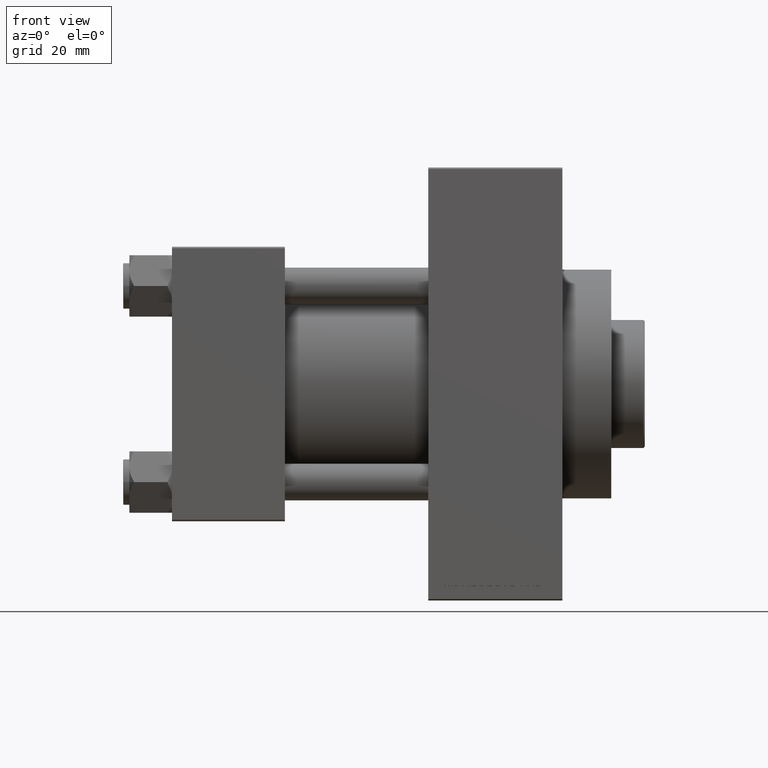
[diagram: clean part render]
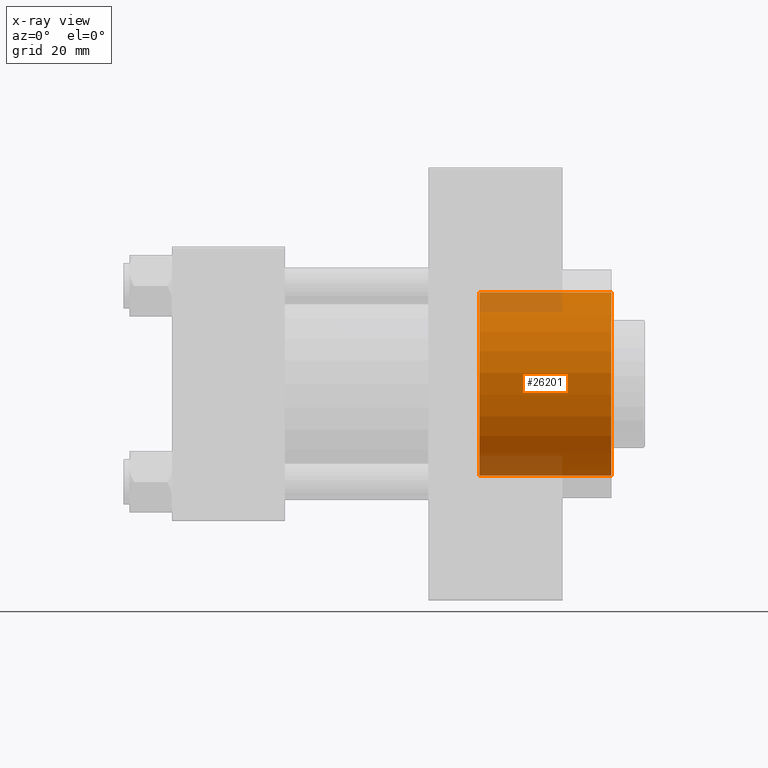
[diagram: x-ray — body ghosted, one internal face saturated and labeled with its STEP entity id]
A machine part, front view, then the same camera in x-ray: the body is ghosted and one INTERNAL B-rep face — a face not visible from any outside direction — is saturated and labeled: STEP entity #26201.
In plain terms, the highlighted cylindrical surface (partial cylindrical patch) has radius 30 mm, axis along (1, 0, 0).
Its self-contained STEP definition (entity closure, byte-faithful):
#6 = ORIENTED_EDGE ( 'NONE', *, *, #17938, .F. ) ;
#164 = DIRECTION ( 'NONE',  ( 0.000000000000000000, 0.000000000000000000, -1.000000000000000000 ) ) ;
#516 = CARTESIAN_POINT ( 'NONE',  ( 144.0000000000000284, 0.000000000000000000, -30.00000000000000000 ) ) ;
#2182 = DIRECTION ( 'NONE',  ( 1.000000000000000000, -0.000000000000000000, -0.000000000000000000 ) ) ;
#2201 = CARTESIAN_POINT ( 'NONE',  ( 100.7400000000000233, 3.673940397442059178E-15, 30.00000000000000000 ) ) ;
#4290 = CARTESIAN_POINT ( 'NONE',  ( 100.7400000000000233, 0.000000000000000000, -30.00000000000000000 ) ) ;
#4436 = CARTESIAN_POINT ( 'NONE',  ( 100.7400000000000233, 0.000000000000000000, 0.000000000000000000 ) ) ;
#4820 = VERTEX_POINT ( 'NONE', #4290 ) ;
#5921 = AXIS2_PLACEMENT_3D ( 'NONE', #39833, #21450, #43416 ) ;
#7325 = DIRECTION ( 'NONE',  ( 1.000000000000000000, -0.000000000000000000, -0.000000000000000000 ) ) ;
#7341 = ORIENTED_EDGE ( 'NONE', *, *, #15600, .T. ) ;
#12687 = ORIENTED_EDGE ( 'NONE', *, *, #24501, .T. ) ;
#13786 = DIRECTION ( 'NONE',  ( 1.000000000000000000, -0.000000000000000000, -0.000000000000000000 ) ) ;
#14351 = AXIS2_PLACEMENT_3D ( 'NONE', #40038, #7325, #164 ) ;
#15518 = VERTEX_POINT ( 'NONE', #516 ) ;
#15600 = EDGE_CURVE ( 'NONE', #32209, #30553, #34436, .T. ) ;
#16363 = DIRECTION ( 'NONE',  ( 1.000000000000000000, 0.000000000000000000, 0.000000000000000000 ) ) ;
#17125 = CIRCLE ( 'NONE', #37715, 30.00000000000000000 ) ;
#17344 = CARTESIAN_POINT ( 'NONE',  ( 100.7400000000000233, 0.000000000000000000, -30.00000000000000000 ) ) ;
#17938 = EDGE_CURVE ( 'NONE', #32209, #4820, #17125, .T. ) ;
#21450 = DIRECTION ( 'NONE',  ( 1.000000000000000000, 0.000000000000000000, 0.000000000000000000 ) ) ;
#24138 = ORIENTED_EDGE ( 'NONE', *, *, #39896, .F. ) ;
#24230 = VECTOR ( 'NONE', #13786, 1000.000000000000000 ) ;
#24501 = EDGE_CURVE ( 'NONE', #30553, #15518, #44011, .T. ) ;
#26201 = ADVANCED_FACE ( 'NONE', ( #26409 ), #40976, .F. ) ;
#26409 = FACE_OUTER_BOUND ( 'NONE', #31435, .T. ) ;
#28611 = VECTOR ( 'NONE', #2182, 1000.000000000000000 ) ;
#30553 = VERTEX_POINT ( 'NONE', #33040 ) ;
#31435 = EDGE_LOOP ( 'NONE', ( #6, #7341, #12687, #24138 ) ) ;
#32209 = VERTEX_POINT ( 'NONE', #2201 ) ;
#33040 = CARTESIAN_POINT ( 'NONE',  ( 144.0000000000000284, 3.673940397442059178E-15, 30.00000000000000000 ) ) ;
#34436 = LINE ( 'NONE', #45888, #28611 ) ;
#37143 = DIRECTION ( 'NONE',  ( 0.000000000000000000, 0.000000000000000000, -1.000000000000000000 ) ) ;
#37715 = AXIS2_PLACEMENT_3D ( 'NONE', #4436, #16363, #37143 ) ;
#39833 = CARTESIAN_POINT ( 'NONE',  ( 144.0000000000000284, 0.000000000000000000, 0.000000000000000000 ) ) ;
#39896 = EDGE_CURVE ( 'NONE', #4820, #15518, #42907, .T. ) ;
#40038 = CARTESIAN_POINT ( 'NONE',  ( 100.7400000000000233, 0.000000000000000000, 0.000000000000000000 ) ) ;
#40976 = CYLINDRICAL_SURFACE ( 'NONE', #14351, 30.00000000000000000 ) ;
#42907 = LINE ( 'NONE', #17344, #24230 ) ;
#43416 = DIRECTION ( 'NONE',  ( 0.000000000000000000, 0.000000000000000000, -1.000000000000000000 ) ) ;
#44011 = CIRCLE ( 'NONE', #5921, 30.00000000000000000 ) ;
#45888 = CARTESIAN_POINT ( 'NONE',  ( 100.7400000000000233, 3.673940397442059178E-15, 30.00000000000000000 ) ) ;